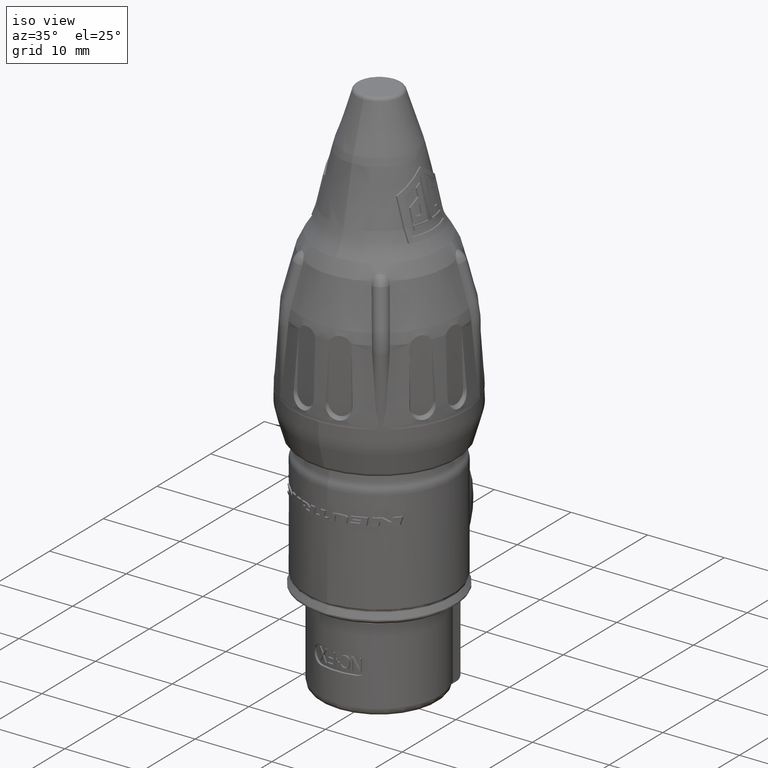
[diagram: clean part render]
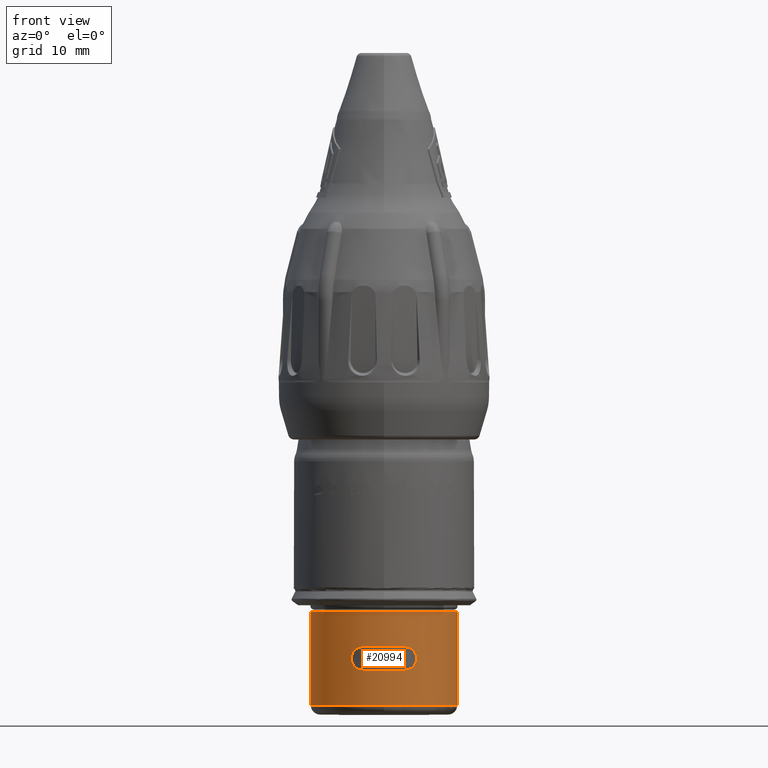
[diagram: tour spotlight — one face highlighted and labeled with its STEP entity id]
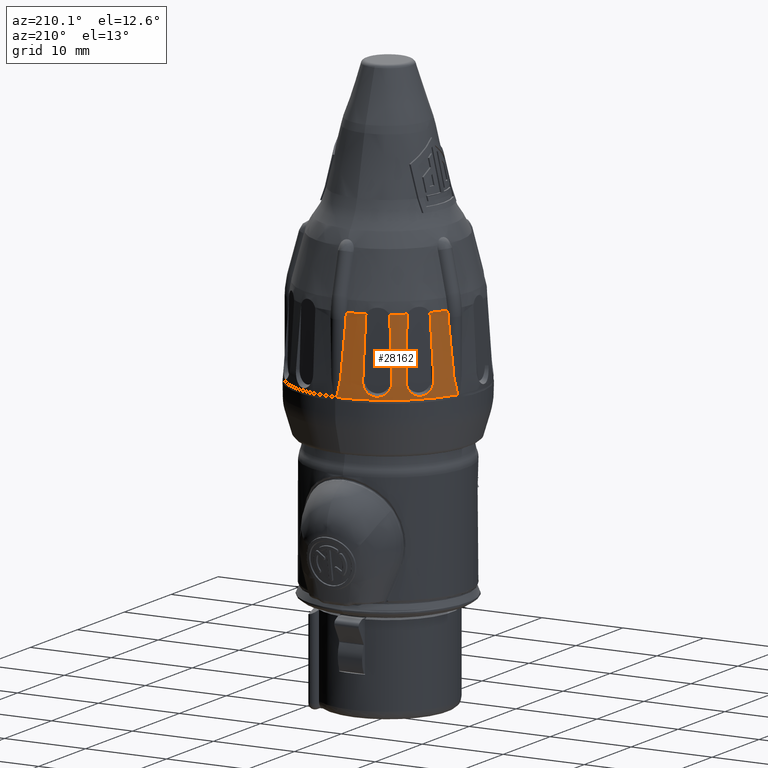
[diagram: tour spotlight — one face highlighted and labeled with its STEP entity id]
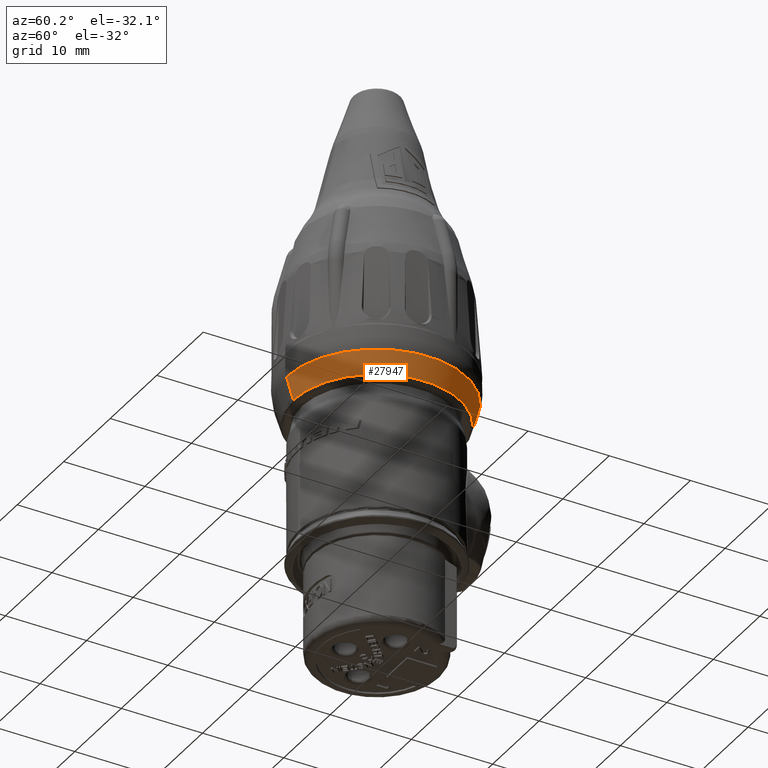
[diagram: tour spotlight — one face highlighted and labeled with its STEP entity id]
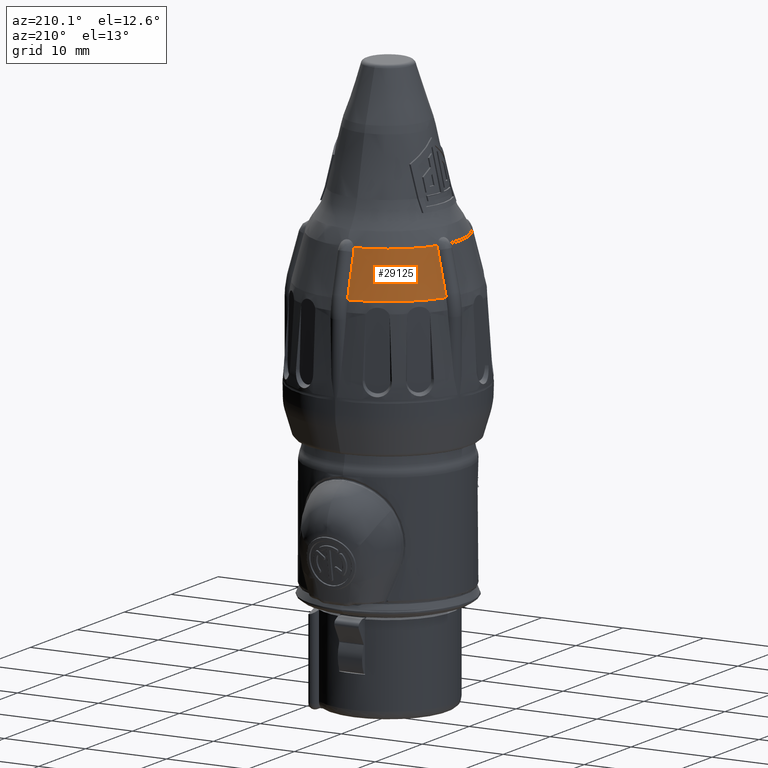
[diagram: tour spotlight — one face highlighted and labeled with its STEP entity id]
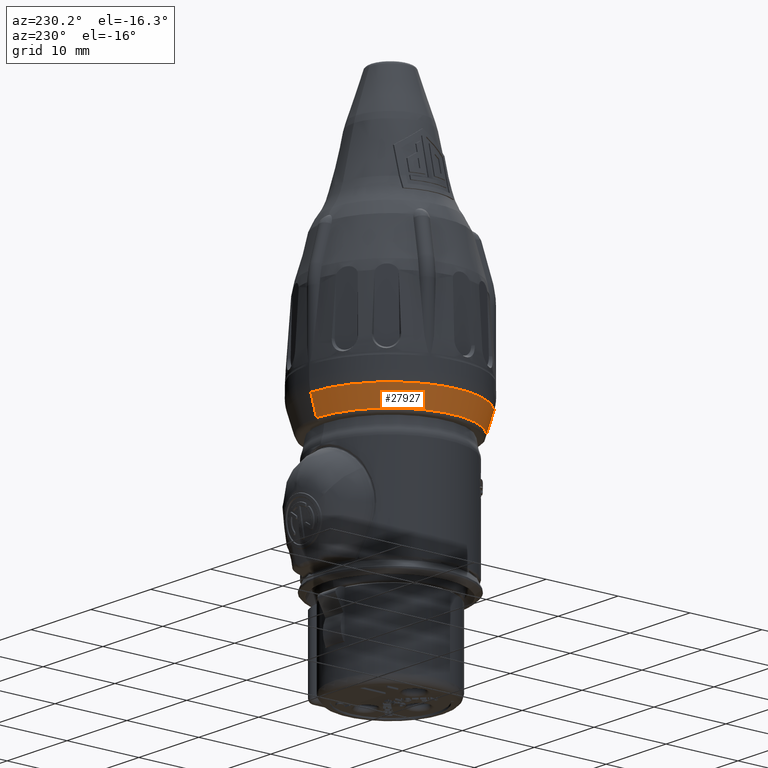
[diagram: tour spotlight — one face highlighted and labeled with its STEP entity id]
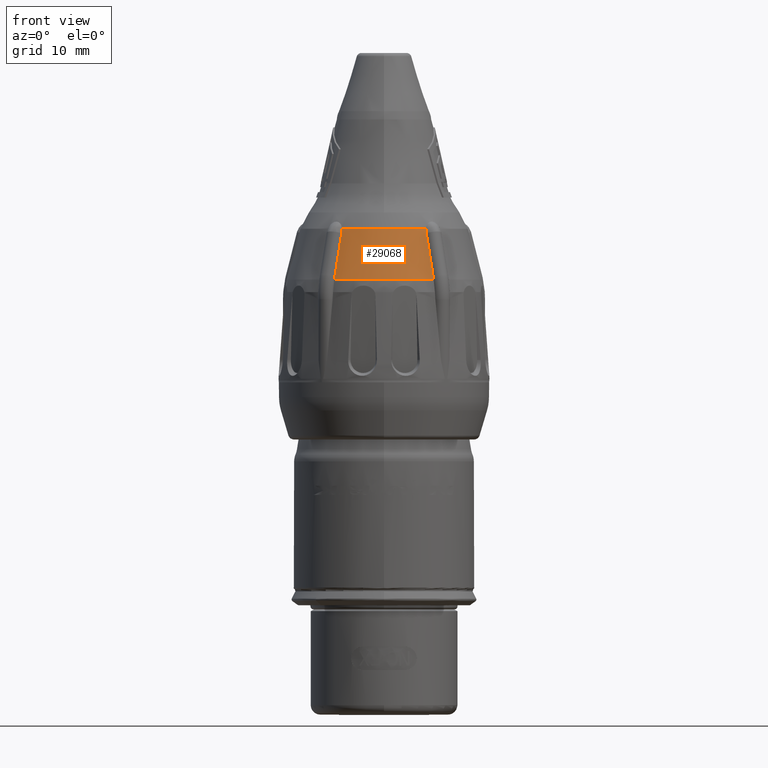
[diagram: tour spotlight — one face highlighted and labeled with its STEP entity id]
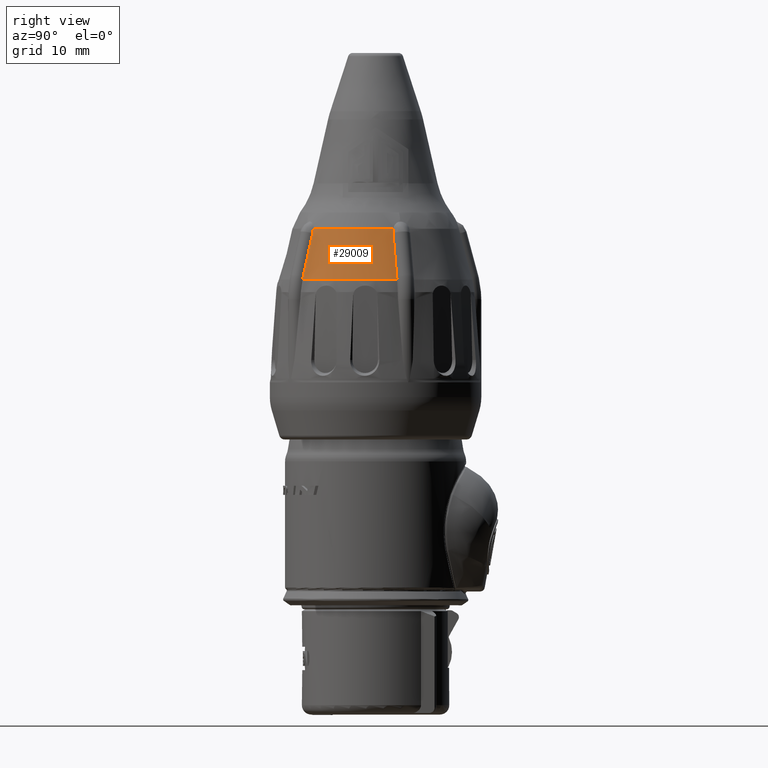
[diagram: tour spotlight — one face highlighted and labeled with its STEP entity id]
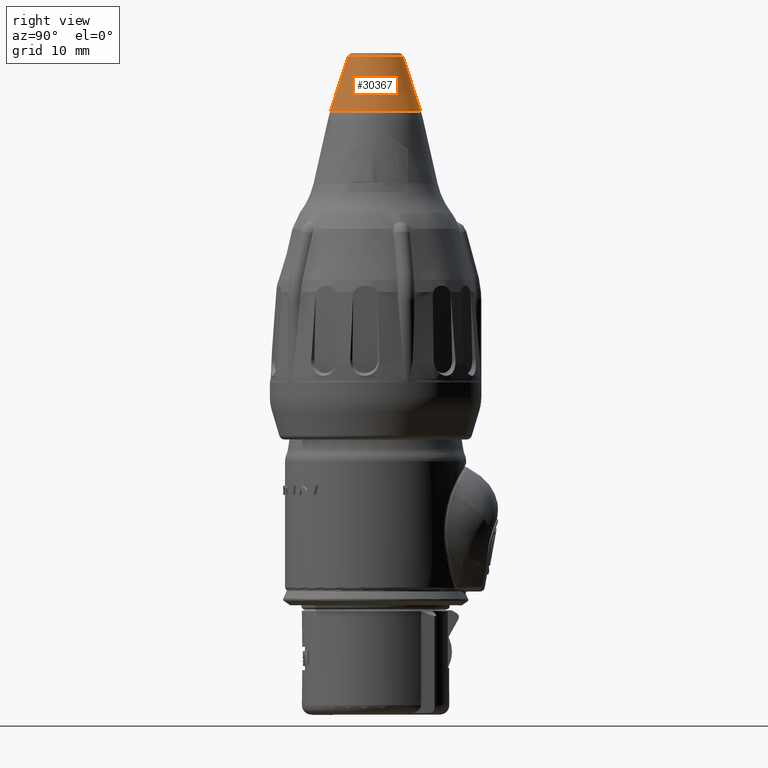
[diagram: tour spotlight — one face highlighted and labeled with its STEP entity id]
A machine part: a face-by-face anatomy tour. The part has 1145 B-rep faces; the first image is the clean iso view, then the 8 largest visible faces are spotlighted one at a time (largest first), each with its STEP entity span.

Face 1 — front view, entity #20994. In plain terms, the highlighted cylindrical surface (partial cylindrical patch) has radius 7.875 mm, axis along (0, 0, 1).
Definition (entity closure, byte-faithful):
#218=CARTESIAN_POINT('',(2.25E0,-7.546729424062E0,-6.85E0));
#219=CARTESIAN_POINT('',(2.368579292255E0,-7.511375909634E0,-6.85E0));
#220=CARTESIAN_POINT('',(2.594328459553E0,-7.438162107166E0,-6.882332954486E0));
#221=CARTESIAN_POINT('',(2.912914929128E0,-7.318719409727E0,-7.021742511960E0));
#222=CARTESIAN_POINT('',(3.170732248735E0,-7.209851206644E0,-7.234081597412E0));
#223=CARTESIAN_POINT('',(3.362059367683E0,-7.121898901173E0,-7.498965859915E0));
#224=CARTESIAN_POINT('',(3.474581553895E0,-7.067161186689E0,-7.793912920977E0));
#225=CARTESIAN_POINT('',(3.513154910400E0,-7.047911971453E0,-8.100985737652E0));
#226=CARTESIAN_POINT('',(3.474075362404E0,-7.067410731999E0,-8.407798166258E0));
#227=CARTESIAN_POINT('',(3.361574762981E0,-7.122128959973E0,-8.701935042772E0));
#228=CARTESIAN_POINT('',(3.170154424702E0,-7.210101428942E0,-8.966397674929E0));
#229=CARTESIAN_POINT('',(2.912914678769E0,-7.318713149267E0,-9.178239462225E0));
#230=CARTESIAN_POINT('',(2.594405040162E0,-7.438136078270E0,-9.317641237948E0));
#231=CARTESIAN_POINT('',(2.368633155905E0,-7.511359850597E0,-9.35E0));
#232=CARTESIAN_POINT('',(2.25E0,-7.546729424062E0,-9.35E0));
#234=CARTESIAN_POINT('',(-2.25E0,-7.546729424062E0,-9.35E0));
#235=CARTESIAN_POINT('',(-2.368579292255E0,-7.511375909634E0,-9.35E0));
#236=CARTESIAN_POINT('',(-2.594328459553E0,-7.438162107166E0,
-9.317667045514E0));
#237=CARTESIAN_POINT('',(-2.912914929128E0,-7.318719409727E0,
-9.178257488040E0));
#238=CARTESIAN_POINT('',(-3.170732248735E0,-7.209851206644E0,
-8.965918402588E0));
#239=CARTESIAN_POINT('',(-3.362059367683E0,-7.121898901173E0,
-8.701034140085E0));
#240=CARTESIAN_POINT('',(-3.474581553895E0,-7.067161186689E0,
-8.406087079023E0));
#241=CARTESIAN_POINT('',(-3.513154910400E0,-7.047911971453E0,
-8.099014262348E0));
#242=CARTESIAN_POINT('',(-3.474075362404E0,-7.067410731999E0,
-7.792201833742E0));
#243=CARTESIAN_POINT('',(-3.361574762981E0,-7.122128959973E0,
-7.498064957228E0));
#244=CARTESIAN_POINT('',(-3.170154424702E0,-7.210101428942E0,
-7.233602325071E0));
#245=CARTESIAN_POINT('',(-2.912914678769E0,-7.318713149267E0,
-7.021760537775E0));
#246=CARTESIAN_POINT('',(-2.594405040162E0,-7.438136078270E0,
-6.882358762052E0));
#247=CARTESIAN_POINT('',(-2.368633155905E0,-7.511359850597E0,-6.85E0));
#248=CARTESIAN_POINT('',(-2.25E0,-7.546729424062E0,-6.85E0));
#250=DIRECTION('',(0.E0,0.E0,1.E0));
#251=VECTOR('',#250,1.005048094716E1);
#252=CARTESIAN_POINT('',(5.047797160808E0,6.044449422680E0,-1.31E1));
#253=LINE('',#252,#251);
#254=CARTESIAN_POINT('',(0.E0,0.E0,-3.049519052838E0));
#255=DIRECTION('',(0.E0,0.E0,1.E0));
#256=DIRECTION('',(6.409901156581E-1,7.675491330388E-1,0.E0));
#257=AXIS2_PLACEMENT_3D('',#254,#255,#256);
#259=CARTESIAN_POINT('',(0.E0,0.E0,-9.1E0));
#260=DIRECTION('',(0.E0,0.E0,1.E0));
#261=DIRECTION('',(2.031746031746E-1,9.791425231420E-1,0.E0));
#262=AXIS2_PLACEMENT_3D('',#259,#260,#261);
#268=CARTESIAN_POINT('',(0.E0,0.E0,-9.35E0));
#269=DIRECTION('',(0.E0,0.E0,1.E0));
#270=DIRECTION('',(-2.857142857143E-1,-9.583148474999E-1,0.E0));
#271=AXIS2_PLACEMENT_3D('',#268,#269,#270);
#286=CARTESIAN_POINT('',(0.E0,0.E0,-6.85E0));
#287=DIRECTION('',(0.E0,0.E0,1.E0));
#288=DIRECTION('',(-2.857142857143E-1,-9.583148474999E-1,0.E0));
#289=AXIS2_PLACEMENT_3D('',#286,#287,#288);
#1567=CARTESIAN_POINT('',(0.E0,0.E0,-3.049519052838E0));
#1568=DIRECTION('',(0.E0,0.E0,-1.E0));
#1569=DIRECTION('',(7.873015873016E-1,6.165680908321E-1,0.E0));
#1570=AXIS2_PLACEMENT_3D('',#1567,#1568,#1569);
#10933=DIRECTION('',(0.E0,0.E0,1.E0));
#10934=VECTOR('',#10933,6.050480947162E0);
#10935=CARTESIAN_POINT('',(-1.6E0,7.710747369743E0,-9.1E0));
#10936=LINE('',#10935,#10934);
#10949=DIRECTION('',(0.E0,0.E0,1.E0));
#10950=VECTOR('',#10949,6.050480947162E0);
#10951=CARTESIAN_POINT('',(1.6E0,7.710747369743E0,-9.1E0));
#10952=LINE('',#10951,#10950);
#13390=CARTESIAN_POINT('',(5.047797160808E0,6.044449422680E0,-1.31E1));
#13392=CARTESIAN_POINT('',(0.E0,0.E0,-1.31E1));
#13393=DIRECTION('',(0.E0,0.E0,1.E0));
#13394=DIRECTION('',(6.409901156581E-1,7.675491330388E-1,0.E0));
#13395=AXIS2_PLACEMENT_3D('',#13392,#13393,#13394);
#13412=DIRECTION('',(0.E0,0.E0,1.E0));
#13413=VECTOR('',#13412,1.005048094716E1);
#13414=CARTESIAN_POINT('',(6.2E0,4.855473715303E0,-1.31E1));
#13415=LINE('',#13414,#13413);
#13450=CARTESIAN_POINT('',(0.E0,0.E0,-1.31E1));
#13451=DIRECTION('',(0.E0,0.E0,-1.E0));
#13452=DIRECTION('',(7.873015873016E-1,6.165680908321E-1,0.E0));
#13453=AXIS2_PLACEMENT_3D('',#13450,#13451,#13452);
#17943=CARTESIAN_POINT('',(0.E0,-7.875E0,-1.31E1));
#17945=VERTEX_POINT('',#17943);
#17955=VERTEX_POINT('',#218);
#17956=VERTEX_POINT('',#232);
#17959=CARTESIAN_POINT('',(-2.25E0,-7.546729424062E0,-6.85E0));
#17960=VERTEX_POINT('',#17959);
#17963=VERTEX_POINT('',#234);
#17966=VERTEX_POINT('',#13390);
#17967=CARTESIAN_POINT('',(1.6E0,7.710747369743E0,-9.1E0));
#17968=CARTESIAN_POINT('',(-1.6E0,7.710747369743E0,-9.1E0));
#17969=VERTEX_POINT('',#17967);
#17970=VERTEX_POINT('',#17968);
#17977=CARTESIAN_POINT('',(6.2E0,4.855473715303E0,-1.31E1));
#17978=VERTEX_POINT('',#17977);
#18252=CARTESIAN_POINT('',(1.6E0,7.710747369743E0,-3.049519052838E0));
#18253=VERTEX_POINT('',#18252);
#18254=CARTESIAN_POINT('',(-1.6E0,7.710747369743E0,-3.049519052838E0));
#18255=VERTEX_POINT('',#18254);
#18256=CARTESIAN_POINT('',(5.047797160808E0,6.044449422680E0,
-3.049519052838E0));
#18257=VERTEX_POINT('',#18256);
#18258=CARTESIAN_POINT('',(6.2E0,4.855473715303E0,-3.049519052838E0));
#18259=VERTEX_POINT('',#18258);
#20959=CARTESIAN_POINT('',(0.E0,0.E0,-1.625E1));
#20960=DIRECTION('',(0.E0,0.E0,1.E0));
#20961=DIRECTION('',(0.E0,-1.E0,0.E0));
#20962=AXIS2_PLACEMENT_3D('',#20959,#20960,#20961);
#20963=CYLINDRICAL_SURFACE('',#20962,7.875E0);
#20965=ORIENTED_EDGE('',*,*,#20964,.F.);
#20967=ORIENTED_EDGE('',*,*,#20966,.F.);
#20969=ORIENTED_EDGE('',*,*,#20968,.T.);
#20971=ORIENTED_EDGE('',*,*,#20970,.F.);
#20973=ORIENTED_EDGE('',*,*,#20972,.T.);
#20975=ORIENTED_EDGE('',*,*,#20974,.T.);
#20977=ORIENTED_EDGE('',*,*,#20976,.F.);
#20979=ORIENTED_EDGE('',*,*,#20978,.T.);
#20981=ORIENTED_EDGE('',*,*,#20980,.T.);
#20982=EDGE_LOOP('',(#20965,#20967,#20969,#20971,#20973,#20975,#20977,#20979,
#20981));
#20983=FACE_OUTER_BOUND('',#20982,.F.);
#20985=ORIENTED_EDGE('',*,*,#20984,.F.);
#20987=ORIENTED_EDGE('',*,*,#20986,.F.);
#20989=ORIENTED_EDGE('',*,*,#20988,.F.);
#20991=ORIENTED_EDGE('',*,*,#20990,.T.);
#20992=EDGE_LOOP('',(#20985,#20987,#20989,#20991));
#20993=FACE_BOUND('',#20992,.F.);
#233=B_SPLINE_CURVE_WITH_KNOTS('',3,(#218,#219,#220,#221,#222,#223,#224,#225,
#226,#227,#228,#229,#230,#231,#232),.UNSPECIFIED.,.F.,.F.,(4,1,1,1,1,1,1,1,1,1,
1,1,4),(0.E0,8.333333333333E-2,1.666666666667E-1,2.5E-1,3.333333333333E-1,
4.166666666667E-1,5.E-1,5.833333333333E-1,6.666666666667E-1,7.5E-1,
8.333333333333E-1,9.166666666667E-1,1.E0),.UNSPECIFIED.);
#249=B_SPLINE_CURVE_WITH_KNOTS('',3,(#234,#235,#236,#237,#238,#239,#240,#241,
#242,#243,#244,#245,#246,#247,#248),.UNSPECIFIED.,.F.,.F.,(4,1,1,1,1,1,1,1,1,1,
1,1,4),(0.E0,8.333333333333E-2,1.666666666667E-1,2.5E-1,3.333333333333E-1,
4.166666666667E-1,5.E-1,5.833333333333E-1,6.666666666667E-1,7.5E-1,
8.333333333333E-1,9.166666666667E-1,1.E0),.UNSPECIFIED.);
#258=CIRCLE('',#257,7.875E0);
#263=CIRCLE('',#262,7.875E0);
#272=CIRCLE('',#271,7.875E0);
#290=CIRCLE('',#289,7.875E0);
#1571=CIRCLE('',#1570,7.875E0);
#13396=CIRCLE('',#13395,7.875E0);
#13454=CIRCLE('',#13453,7.875E0);
#20964=EDGE_CURVE('',#18259,#18255,#1571,.T.);
#20966=EDGE_CURVE('',#17978,#18259,#13415,.T.);
#20968=EDGE_CURVE('',#17978,#17945,#13454,.T.);
#20970=EDGE_CURVE('',#17966,#17945,#13396,.T.);
#20972=EDGE_CURVE('',#17966,#18257,#253,.T.);
#20974=EDGE_CURVE('',#18257,#18253,#258,.T.);
#20976=EDGE_CURVE('',#17969,#18253,#10952,.T.);
#20978=EDGE_CURVE('',#17969,#17970,#263,.T.);
#20980=EDGE_CURVE('',#17970,#18255,#10936,.T.);
#20984=EDGE_CURVE('',#17955,#17956,#233,.T.);
#20986=EDGE_CURVE('',#17960,#17955,#290,.T.);
#20988=EDGE_CURVE('',#17963,#17960,#249,.T.);
#20990=EDGE_CURVE('',#17963,#17956,#272,.T.);
#20994=ADVANCED_FACE('',(#20983,#20993),#20963,.T.);

Face 2 — auxiliary view, entity #28162. In plain terms, the highlighted conical surface has half-angle 4.122 deg.
Definition (entity closure, byte-faithful):
#4111=CARTESIAN_POINT('',(0.E0,0.E0,2.177945276992E1));
#4112=DIRECTION('',(0.E0,0.E0,-1.E0));
#4113=DIRECTION('',(-9.463574077339E-1,3.231217368536E-1,0.E0));
#4114=AXIS2_PLACEMENT_3D('',#4111,#4112,#4113);
#4116=CARTESIAN_POINT('',(-1.677770611056E-1,1.128582150298E1,
2.177945276992E1));
#4117=CARTESIAN_POINT('',(-1.786850246398E-1,1.128396482847E1,
2.180296502657E1));
#4118=CARTESIAN_POINT('',(-2.001183374682E-1,1.127996364384E1,
2.185363825064E1));
#4119=CARTESIAN_POINT('',(-2.325374164738E-1,1.127275543658E1,
2.194499154136E1));
#4120=CARTESIAN_POINT('',(-2.612978335629E-1,1.126541285889E1,
2.203809909957E1));
#4121=CARTESIAN_POINT('',(-2.909011995199E-1,1.125691422752E1,
2.214593537375E1));
#4122=CARTESIAN_POINT('',(-3.190211865126E-1,1.124789963669E1,
2.226040065403E1));
#4123=CARTESIAN_POINT('',(-3.472380610432E-1,1.123794011417E1,
2.238696033144E1));
#4124=CARTESIAN_POINT('',(-3.754043463374E-1,1.122702072557E1,
2.252583734105E1));
#4125=CARTESIAN_POINT('',(-4.029560756683E-1,1.121539270879E1,
2.267386025690E1));
#4126=CARTESIAN_POINT('',(-4.315419374705E-1,1.120226892282E1,
2.284109579904E1));
#4127=CARTESIAN_POINT('',(-4.589653247857E-1,1.118864480304E1,
2.301489421191E1));
#4128=CARTESIAN_POINT('',(-4.880457094805E-1,1.117302063502E1,
2.321444796313E1));
#4129=CARTESIAN_POINT('',(-5.158510039670E-1,1.115689386106E1,
2.342068882502E1));
#4130=CARTESIAN_POINT('',(-5.452784120960E-1,1.113849672423E1,
2.365629821544E1));
#4131=CARTESIAN_POINT('',(-5.739620974928E-1,1.111913297928E1,
2.390467850764E1));
#4132=CARTESIAN_POINT('',(-6.034240366709E-1,1.109771697789E1,
2.417983854222E1));
#4133=CARTESIAN_POINT('',(-6.334482122818E-1,1.107409651944E1,
2.448390297339E1));
#4134=CARTESIAN_POINT('',(-6.625505027527E-1,1.104936200753E1,
2.480294724836E1));
#4135=CARTESIAN_POINT('',(-6.927909562559E-1,1.102155188226E1,
2.516244438863E1));
#4136=CARTESIAN_POINT('',(-7.230372440736E-1,1.099125567019E1,
2.555505608660E1));
#4137=CARTESIAN_POINT('',(-7.525307973941E-1,1.095906744599E1,
2.597328339499E1));
#4138=CARTESIAN_POINT('',(-7.823738887908E-1,1.092341744382E1,
2.643782289324E1));
#4139=CARTESIAN_POINT('',(-8.118387759038E-1,1.088459205991E1,
2.694536319630E1));
#4140=CARTESIAN_POINT('',(-8.407583050310E-1,1.084226247338E1,
2.750064777698E1));
#4141=CARTESIAN_POINT('',(-8.688261189444E-1,1.079614408954E1,
2.810796768893E1));
#4142=CARTESIAN_POINT('',(-8.955793442379E-1,1.074617081536E1,
2.876882496342E1));
#4143=CARTESIAN_POINT('',(-9.208190550220E-1,1.069162814007E1,
2.949343806158E1));
#4144=CARTESIAN_POINT('',(-9.362825947980E-1,1.065192830806E1,
3.002355632893E1));
#4145=CARTESIAN_POINT('',(-9.435303540900E-1,1.063128608620E1,3.03E1));
#4147=CARTESIAN_POINT('',(-9.435303540900E-1,1.063128608620E1,3.03E1));
#4148=CARTESIAN_POINT('',(-9.456608596776E-1,1.062521822892E1,
3.038126163717E1));
#4149=CARTESIAN_POINT('',(-9.490405770828E-1,1.061310649113E1,
3.054450810445E1));
#4150=CARTESIAN_POINT('',(-9.517546355757E-1,1.059499044288E1,
3.079153846445E1));
#4151=CARTESIAN_POINT('',(-9.520854794570E-1,1.058294126217E1,
3.095766294078E1));
#4152=CARTESIAN_POINT('',(-9.518777910151E-1,1.057692423373E1,
3.104108480385E1));
#4154=CARTESIAN_POINT('',(0.E0,0.E0,3.104108480385E1));
#4155=DIRECTION('',(0.E0,0.E0,1.E0));
#4156=DIRECTION('',(-8.963345969154E-2,9.959748204165E-1,0.E0));
#4157=AXIS2_PLACEMENT_3D('',#4154,#4155,#4156);
#4159=CARTESIAN_POINT('',(-3.167684803999E0,1.013623058921E1,3.104108480385E1));
#4160=CARTESIAN_POINT('',(-3.158660091892E0,1.014077108439E1,3.101830028487E1));
#4161=CARTESIAN_POINT('',(-3.140675989344E0,1.014983203602E1,3.097233680253E1));
#4162=CARTESIAN_POINT('',(-3.122814734625E0,1.015885629287E1,3.092558827414E1));
#4163=CARTESIAN_POINT('',(-3.113913004771E0,1.016336003677E1,3.090201856340E1));
#4165=CARTESIAN_POINT('',(-3.056022657038E0,1.071414990349E1,2.38E1));
#4166=CARTESIAN_POINT('',(-3.062514605448E0,1.065238314030E1,2.459956494379E1));
#4167=CARTESIAN_POINT('',(-3.075458237065E0,1.052923271173E1,2.619172727485E1));
#4168=CARTESIAN_POINT('',(-3.094754242149E0,1.034564348685E1,2.855906208860E1));
#4169=CARTESIAN_POINT('',(-3.107539677580E0,1.022399819446E1,3.012335540323E1));
#4170=CARTESIAN_POINT('',(-3.113913004771E0,1.016336003677E1,3.090201856340E1));
#4172=CARTESIAN_POINT('',(-3.056022657038E0,1.071414990349E1,2.38E1));
#4173=CARTESIAN_POINT('',(-3.054699363337E0,1.072674020204E1,2.363701976868E1));
#4174=CARTESIAN_POINT('',(-3.097181963821E0,1.073715452925E1,2.333766819688E1));
#4175=CARTESIAN_POINT('',(-3.239935956953E0,1.072267377164E1,2.297318847084E1));
#4176=CARTESIAN_POINT('',(-3.429664812699E0,1.068585945693E1,2.268141459270E1));
#4177=CARTESIAN_POINT('',(-3.656512828973E0,1.062847830138E1,2.244712517223E1));
#4178=CARTESIAN_POINT('',(-3.912544452431E0,1.055106588899E1,2.226784722961E1));
#4179=CARTESIAN_POINT('',(-4.207450571344E0,1.044703705615E1,2.214235094298E1));
#4180=CARTESIAN_POINT('',(-4.513565036466E0,1.032288822669E1,2.208850109284E1));
#4181=CARTESIAN_POINT('',(-4.822749787341E0,1.018019452488E1,2.211069102015E1));
#4182=CARTESIAN_POINT('',(-5.092676778958E0,1.004023392521E1,2.220006512487E1));
#4183=CARTESIAN_POINT('',(-5.334958624482E0,9.901759233211E0,2.234456043703E1));
#4184=CARTESIAN_POINT('',(-5.573618293632E0,9.750225761263E0,2.257505121533E1));
#4185=CARTESIAN_POINT('',(-5.777638808248E0,9.602424576662E0,2.290589327936E1));
#4186=CARTESIAN_POINT('',(-5.907774224978E0,9.486693549140E0,2.332558510551E1));
#4187=CARTESIAN_POINT('',(-5.927635082858E0,9.447751537503E0,2.363532590022E1));
#4188=CARTESIAN_POINT('',(-5.917286766615E0,9.440233045659E0,2.38E1));
#4190=CARTESIAN_POINT('',(-5.469233923756E0,9.114703600528E0,3.090201856340E1));
#4191=CARTESIAN_POINT('',(-5.518556317145E0,9.150538416908E0,3.012343635185E1));
#4192=CARTESIAN_POINT('',(-5.617504703392E0,9.222428627594E0,2.855925098789E1));
#4193=CARTESIAN_POINT('',(-5.766849586014E0,9.330934036159E0,2.619191757928E1));
#4194=CARTESIAN_POINT('',(-5.867036029014E0,9.403723747728E0,2.459964651092E1));
#4195=CARTESIAN_POINT('',(-5.917286766615E0,9.440233045659E0,2.38E1));
#4197=CARTESIAN_POINT('',(-5.469233923756E0,9.114703600528E0,3.090201856340E1));
#4198=CARTESIAN_POINT('',(-5.459931026145E0,9.118305105491E0,3.092558711824E1));
#4199=CARTESIAN_POINT('',(-5.441273657666E0,9.125540013552E0,3.097233449864E1));
#4200=CARTESIAN_POINT('',(-5.422505889186E0,9.132842022627E0,3.101829913743E1));
#4201=CARTESIAN_POINT('',(-5.413092458564E0,9.136510691187E0,3.104108480385E1));
#4203=CARTESIAN_POINT('',(0.E0,0.E0,3.104108480385E1));
#4204=DIRECTION('',(0.E0,0.E0,1.E0));
#4205=DIRECTION('',(-5.097232116046E-1,8.603384494206E-1,0.E0));
#4206=AXIS2_PLACEMENT_3D('',#4203,#4204,#4205);
#4208=CARTESIAN_POINT('',(-6.978512024729E0,8.018148873584E0,3.090201856340E1));
#4209=CARTESIAN_POINT('',(-6.984812321929E0,8.010413839089E0,3.092558827414E1));
#4210=CARTESIAN_POINT('',(-6.997458894105E0,7.994904943443E0,3.097233680253E1));
#4211=CARTESIAN_POINT('',(-7.010202768248E0,7.979312558742E0,3.101830028487E1));
#4212=CARTESIAN_POINT('',(-7.016600467235E0,7.971493928891E0,3.104108480385E1));
#4214=CARTESIAN_POINT('',(-7.149652981945E0,8.544866580145E0,2.38E1));
#4215=CARTESIAN_POINT('',(-7.130460866013E0,8.485799320898E0,2.459956494379E1));
#4216=CARTESIAN_POINT('',(-7.092195669973E0,8.368031156999E0,2.619172727485E1));
#4217=CARTESIAN_POINT('',(-7.035150982736E0,8.192465662208E0,2.855906208860E1));
#4218=CARTESIAN_POINT('',(-6.997353461323E0,8.076136852808E0,3.012335540323E1));
#4219=CARTESIAN_POINT('',(-6.978512024729E0,8.018148873584E0,3.090201856340E1));
#4221=CARTESIAN_POINT('',(-9.245399146054E0,6.217304662379E0,2.38E1));
#4222=CARTESIAN_POINT('',(-9.257860263007E0,6.219953354554E0,2.363599169947E1));
#4223=CARTESIAN_POINT('',(-9.256404006326E0,6.263077677364E0,2.332067460122E1));
#4224=CARTESIAN_POINT('',(-9.176229517922E0,6.438572003161E0,2.286548384594E1));
#4225=CARTESIAN_POINT('',(-9.017441242339E0,6.706158481381E0,2.248976636813E1));
#4226=CARTESIAN_POINT('',(-8.797870295702E0,7.022530507123E0,2.223164478787E1));
#4227=CARTESIAN_POINT('',(-8.532267452532E0,7.358946973017E0,2.209538732792E1));
#4228=CARTESIAN_POINT('',(-8.218153271738E0,7.708654986374E0,2.209259879446E1));
#4229=CARTESIAN_POINT('',(-7.902502739195E0,8.016851527015E0,2.223192922253E1));
#4230=CARTESIAN_POINT('',(-7.613012149631E0,8.266172151203E0,2.248884003374E1));
#4231=CARTESIAN_POINT('',(-7.362192420435E0,8.453179860813E0,2.286589245194E1));
#4232=CARTESIAN_POINT('',(-7.196744024548E0,8.550785399565E0,2.331939252022E1));
#4233=CARTESIAN_POINT('',(-7.153602199987E0,8.557021023497E0,2.363547117405E1));
#4234=CARTESIAN_POINT('',(-7.149652981945E0,8.544866580145E0,2.38E1));
#4236=CARTESIAN_POINT('',(-8.703677752942E0,6.102158225676E0,3.090201856340E1));
#4237=CARTESIAN_POINT('',(-8.763311334302E0,6.114833734690E0,3.012343635185E1));
#4238=CARTESIAN_POINT('',(-8.882945566063E0,6.140262775652E0,2.855925098789E1));
#4239=CARTESIAN_POINT('',(-9.063512030840E0,6.178643362558E0,2.619191757928E1));
#4240=CARTESIAN_POINT('',(-9.184643143695E0,6.204390575417E0,2.459964651092E1));
#4241=CARTESIAN_POINT('',(-9.245399146054E0,6.217304662379E0,2.38E1));
#4243=CARTESIAN_POINT('',(-8.661259715281E0,6.144914785382E0,3.104108480385E1));
#4244=CARTESIAN_POINT('',(-8.668367130131E0,6.137734502712E0,3.101829913743E1));
#4245=CARTESIAN_POINT('',(-8.682542345118E0,6.123430246340E0,3.097233449864E1));
#4246=CARTESIAN_POINT('',(-8.696643997125E0,6.109232193521E0,3.092558711824E1));
#4247=CARTESIAN_POINT('',(-8.703677752942E0,6.102158225676E0,3.090201856340E1));
#4249=CARTESIAN_POINT('',(0.E0,0.E0,3.104108480385E1));
#4250=DIRECTION('',(0.E0,0.E0,1.E0));
#4251=DIRECTION('',(-8.155864974428E-1,5.786351745176E-1,0.E0));
#4252=AXIS2_PLACEMENT_3D('',#4249,#4250,#4251);
#4254=CARTESIAN_POINT('',(-9.765106300860E0,4.173738912301E0,3.104108480385E1));
#4255=CARTESIAN_POINT('',(-9.770764655706E0,4.175795799790E0,3.095766294078E1));
#4256=CARTESIAN_POINT('',(-9.782326343919E0,4.179204550169E0,3.079153846445E1));
#4257=CARTESIAN_POINT('',(-9.800394419852E0,4.182221493933E0,3.054450810445E1));
#4258=CARTESIAN_POINT('',(-9.812957757114E0,4.182749924479E0,3.038126163717E1));
#4259=CARTESIAN_POINT('',(-9.819386994758E0,4.182598764278E0,3.03E1));
#4261=CARTESIAN_POINT('',(-9.819386994758E0,4.182598764278E0,3.03E1));
#4262=CARTESIAN_POINT('',(-9.840641160593E0,4.182099049666E0,3.003136032479E1));
#4263=CARTESIAN_POINT('',(-9.882003048983E0,4.179765396156E0,2.951566852233E1));
#4264=CARTESIAN_POINT('',(-9.939984801059E0,4.172980594989E0,2.881076227856E1));
#4265=CARTESIAN_POINT('',(-9.994587031977E0,4.163430069633E0,2.816284530258E1));
#4266=CARTESIAN_POINT('',(-1.004583506379E1,4.151584624028E0,2.756896621238E1));
#4267=CARTESIAN_POINT('',(-1.009390363717E1,4.137849434387E0,2.702466740031E1));
#4268=CARTESIAN_POINT('',(-1.013896131507E1,4.122561959610E0,2.652596589307E1));
#4269=CARTESIAN_POINT('',(-1.018094575133E1,4.106113406752E0,2.607161118561E1));
#4270=CARTESIAN_POINT('',(-1.022035488631E1,4.088648622845E0,2.565447073487E1));
#4271=CARTESIAN_POINT('',(-1.025790209253E1,4.070059066988E0,2.526589962741E1));
#4272=CARTESIAN_POINT('',(-1.029269241842E1,4.051017778608E0,2.491399489399E1));
#4273=CARTESIAN_POINT('',(-1.032519294747E1,4.031585180865E0,2.459251910138E1));
#4274=CARTESIAN_POINT('',(-1.035661007134E1,4.011135406461E0,2.428902417545E1));
#4275=CARTESIAN_POINT('',(-1.038492576250E1,3.991222935534E0,2.402187951071E1));
#4276=CARTESIAN_POINT('',(-1.041277027022E1,3.970173856054E0,2.376544234522E1));
#4277=CARTESIAN_POINT('',(-1.043846823310E1,3.949318535028E0,2.353481084399E1));
#4278=CARTESIAN_POINT('',(-1.046290621524E1,3.928139478193E0,2.332112111877E1));
#4279=CARTESIAN_POINT('',(-1.048599100095E1,3.906801794592E0,2.312479001278E1));
#4280=CARTESIAN_POINT('',(-1.050783944405E1,3.885315533892E0,2.294429206453E1));
#4281=CARTESIAN_POINT('',(-1.052857350835E1,3.863652243709E0,2.277820666355E1));
#4282=CARTESIAN_POINT('',(-1.054832262584E1,3.841752107327E0,2.262515584114E1));
#4283=CARTESIAN_POINT('',(-1.056711864906E1,3.819639414804E0,2.248462076026E1));
#4284=CARTESIAN_POINT('',(-1.058505024453E1,3.797279614345E0,2.235563067603E1));
#4285=CARTESIAN_POINT('',(-1.060245658033E1,3.774230567297E0,2.223579714029E1));
#4286=CARTESIAN_POINT('',(-1.061873673342E1,3.751379504287E0,2.212887075988E1));
#4287=CARTESIAN_POINT('',(-1.063540474582E1,3.726451677245E0,2.202547926736E1));
#4288=CARTESIAN_POINT('',(-1.065031435832E1,3.702727791619E0,2.193863804910E1));
#4289=CARTESIAN_POINT('',(-1.066675034869E1,3.674752912024E0,2.185009349865E1));
#4290=CARTESIAN_POINT('',(-1.067671027828E1,3.656423875786E0,2.180185949361E1));
#4291=CARTESIAN_POINT('',(-1.068160530918E1,3.647084336659E0,2.177945276992E1));
#20187=VERTEX_POINT('',#4172);
#20188=VERTEX_POINT('',#4188);
#20191=VERTEX_POINT('',#4190);
#20192=CARTESIAN_POINT('',(-3.113913004771E0,1.016336003677E1,
3.090201856340E1));
#20193=VERTEX_POINT('',#20192);
#20195=CARTESIAN_POINT('',(-9.435303540900E-1,1.063128608620E1,3.03E1));
#20197=VERTEX_POINT('',#20195);
#20202=VERTEX_POINT('',#4152);
#20208=CARTESIAN_POINT('',(-9.819386994758E0,4.182598764278E0,3.03E1));
#20210=VERTEX_POINT('',#20208);
#20257=VERTEX_POINT('',#4254);
#20266=CARTESIAN_POINT('',(-1.068160092081E1,3.647097189393E0,
2.177945276992E1));
#20267=CARTESIAN_POINT('',(-1.677993358739E-1,1.128582117186E1,
2.177945276992E1));
#20268=VERTEX_POINT('',#20266);
#20269=VERTEX_POINT('',#20267);
#20281=VERTEX_POINT('',#4221);
#20282=VERTEX_POINT('',#4234);
#20285=CARTESIAN_POINT('',(-6.978512024729E0,8.018148873584E0,
3.090201856340E1));
#20286=VERTEX_POINT('',#20285);
#20287=CARTESIAN_POINT('',(-8.703677752942E0,6.102158225676E0,
3.090201856340E1));
#20288=VERTEX_POINT('',#20287);
#20353=VERTEX_POINT('',#4201);
#20354=VERTEX_POINT('',#4159);
#20355=VERTEX_POINT('',#4212);
#20356=VERTEX_POINT('',#4243);
#28120=CARTESIAN_POINT('',(0.E0,0.E0,2.641026878689E1));
#28121=DIRECTION('',(0.E0,0.E0,-1.E0));
#28122=DIRECTION('',(0.E0,1.E0,0.E0));
#28123=AXIS2_PLACEMENT_3D('',#28120,#28121,#28122);
#28124=CONICAL_SURFACE('',#28123,1.095336942502E1,4.121640589126E0);
#28125=ORIENTED_EDGE('',*,*,#28052,.T.);
#28127=ORIENTED_EDGE('',*,*,#28126,.T.);
#28129=ORIENTED_EDGE('',*,*,#28128,.T.);
#28131=ORIENTED_EDGE('',*,*,#28130,.T.);
#28133=ORIENTED_EDGE('',*,*,#28132,.T.);
#28135=ORIENTED_EDGE('',*,*,#28134,.F.);
#28137=ORIENTED_EDGE('',*,*,#28136,.T.);
#28139=ORIENTED_EDGE('',*,*,#28138,.F.);
#28141=ORIENTED_EDGE('',*,*,#28140,.T.);
#28143=ORIENTED_EDGE('',*,*,#28142,.T.);
#28145=ORIENTED_EDGE('',*,*,#28144,.F.);
#28147=ORIENTED_EDGE('',*,*,#28146,.F.);
#28149=ORIENTED_EDGE('',*,*,#28148,.F.);
#28151=ORIENTED_EDGE('',*,*,#28150,.F.);
#28153=ORIENTED_EDGE('',*,*,#28152,.F.);
#28155=ORIENTED_EDGE('',*,*,#28154,.T.);
#28157=ORIENTED_EDGE('',*,*,#28156,.T.);
#28159=ORIENTED_EDGE('',*,*,#28158,.T.);
#28160=EDGE_LOOP('',(#28125,#28127,#28129,#28131,#28133,#28135,#28137,#28139,
#28141,#28143,#28145,#28147,#28149,#28151,#28153,#28155,#28157,#28159));
#28161=FACE_OUTER_BOUND('',#28160,.F.);
#4115=CIRCLE('',#4114,1.128706853617E1);
#4146=B_SPLINE_CURVE_WITH_KNOTS('',3,(#4116,#4117,#4118,#4119,#4120,#4121,#4122,
#4123,#4124,#4125,#4126,#4127,#4128,#4129,#4130,#4131,#4132,#4133,#4134,#4135,
#4136,#4137,#4138,#4139,#4140,#4141,#4142,#4143,#4144,#4145),.UNSPECIFIED.,.F.,
.F.,(4,1,1,1,1,1,1,1,1,1,1,1,1,1,1,1,1,1,1,1,1,1,1,1,1,1,1,4),(0.E0,
3.703703703704E-2,7.407407407407E-2,1.111111111111E-1,1.481481481481E-1,
1.851851851852E-1,2.222222222222E-1,2.592592592593E-1,2.962962962963E-1,
3.333333333333E-1,3.703703703704E-1,4.074074074074E-1,4.444444444444E-1,
4.814814814815E-1,5.185185185185E-1,5.555555555556E-1,5.925925925926E-1,
6.296296296296E-1,6.666666666667E-1,7.037037037037E-1,7.407407407407E-1,
7.777777777778E-1,8.148148148148E-1,8.518518518519E-1,8.888888888889E-1,
9.259259259259E-1,9.629629629630E-1,1.E0),.UNSPECIFIED.);
#4153=B_SPLINE_CURVE_WITH_KNOTS('',3,(#4147,#4148,#4149,#4150,#4151,#4152),
.UNSPECIFIED.,.F.,.F.,(4,1,1,4),(0.E0,3.333333333333E-1,6.666666666667E-1,1.E0),
.UNSPECIFIED.);
#4158=CIRCLE('',#4157,1.061967031386E1);
#4164=B_SPLINE_CURVE_WITH_KNOTS('',3,(#4159,#4160,#4161,#4162,#4163),
.UNSPECIFIED.,.F.,.F.,(4,1,4),(0.E0,5.E-1,1.E0),.UNSPECIFIED.);
#4171=B_SPLINE_CURVE_WITH_KNOTS('',3,(#4165,#4166,#4167,#4168,#4169,#4170),
.UNSPECIFIED.,.F.,.F.,(4,1,1,4),(0.E0,3.333333333333E-1,6.666666666667E-1,1.E0),
.UNSPECIFIED.);
#4189=B_SPLINE_CURVE_WITH_KNOTS('',3,(#4172,#4173,#4174,#4175,#4176,#4177,#4178,
#4179,#4180,#4181,#4182,#4183,#4184,#4185,#4186,#4187,#4188),.UNSPECIFIED.,.F.,
.F.,(4,1,1,1,1,1,1,1,1,1,1,1,1,1,4),(0.E0,7.142857142857E-2,1.428571428571E-1,
2.142857142857E-1,2.857142857143E-1,3.571428571429E-1,4.285714285714E-1,5.E-1,
5.714285714286E-1,6.428571428571E-1,7.142857142857E-1,7.857142857143E-1,
8.571428571429E-1,9.285714285714E-1,1.E0),.UNSPECIFIED.);
#4196=B_SPLINE_CURVE_WITH_KNOTS('',3,(#4190,#4191,#4192,#4193,#4194,#4195),
.UNSPECIFIED.,.F.,.F.,(4,1,1,4),(0.E0,3.333333333333E-1,6.666666666667E-1,1.E0),
.UNSPECIFIED.);
#4202=B_SPLINE_CURVE_WITH_KNOTS('',3,(#4197,#4198,#4199,#4200,#4201),
.UNSPECIFIED.,.F.,.F.,(4,1,4),(0.E0,5.E-1,1.E0),.UNSPECIFIED.);
#4207=CIRCLE('',#4206,1.061967031386E1);
#4213=B_SPLINE_CURVE_WITH_KNOTS('',3,(#4208,#4209,#4210,#4211,#4212),
.UNSPECIFIED.,.F.,.F.,(4,1,4),(0.E0,5.E-1,1.E0),.UNSPECIFIED.);
#4220=B_SPLINE_CURVE_WITH_KNOTS('',3,(#4214,#4215,#4216,#4217,#4218,#4219),
.UNSPECIFIED.,.F.,.F.,(4,1,1,4),(0.E0,3.333333333333E-1,6.666666666667E-1,1.E0),
.UNSPECIFIED.);
#4235=B_SPLINE_CURVE_WITH_KNOTS('',3,(#4221,#4222,#4223,#4224,#4225,#4226,#4227,
#4228,#4229,#4230,#4231,#4232,#4233,#4234),.UNSPECIFIED.,.F.,.F.,(4,1,1,1,1,1,1,
1,1,1,1,4),(0.E0,9.090909090909E-2,1.818181818182E-1,2.727272727273E-1,
3.636363636364E-1,4.545454545455E-1,5.454545454545E-1,6.363636363636E-1,
7.272727272727E-1,8.181818181818E-1,9.090909090909E-1,1.E0),.UNSPECIFIED.);
#4242=B_SPLINE_CURVE_WITH_KNOTS('',3,(#4236,#4237,#4238,#4239,#4240,#4241),
.UNSPECIFIED.,.F.,.F.,(4,1,1,4),(0.E0,3.333333333333E-1,6.666666666667E-1,1.E0),
.UNSPECIFIED.);
#4248=B_SPLINE_CURVE_WITH_KNOTS('',3,(#4243,#4244,#4245,#4246,#4247),
.UNSPECIFIED.,.F.,.F.,(4,1,4),(0.E0,5.E-1,1.E0),.UNSPECIFIED.);
#4253=CIRCLE('',#4252,1.061967031386E1);
#4260=B_SPLINE_CURVE_WITH_KNOTS('',3,(#4254,#4255,#4256,#4257,#4258,#4259),
.UNSPECIFIED.,.F.,.F.,(4,1,1,4),(0.E0,3.333333333333E-1,6.666666666667E-1,1.E0),
.UNSPECIFIED.);
#4292=B_SPLINE_CURVE_WITH_KNOTS('',3,(#4261,#4262,#4263,#4264,#4265,#4266,#4267,
#4268,#4269,#4270,#4271,#4272,#4273,#4274,#4275,#4276,#4277,#4278,#4279,#4280,
#4281,#4282,#4283,#4284,#4285,#4286,#4287,#4288,#4289,#4290,#4291),
.UNSPECIFIED.,.F.,.F.,(4,1,1,1,1,1,1,1,1,1,1,1,1,1,1,1,1,1,1,1,1,1,1,1,1,1,1,1,
4),(0.E0,3.571428571429E-2,7.142857142857E-2,1.071428571429E-1,
1.428571428571E-1,1.785714285714E-1,2.142857142857E-1,2.5E-1,2.857142857143E-1,
3.214285714286E-1,3.571428571429E-1,3.928571428571E-1,4.285714285714E-1,
4.642857142857E-1,5.E-1,5.357142857143E-1,5.714285714286E-1,6.071428571429E-1,
6.428571428571E-1,6.785714285714E-1,7.142857142857E-1,7.5E-1,7.857142857143E-1,
8.214285714286E-1,8.571428571429E-1,8.928571428571E-1,9.285714285714E-1,
9.642857142857E-1,1.E0),.UNSPECIFIED.);
#28052=EDGE_CURVE('',#20268,#20269,#4115,.T.);
#28126=EDGE_CURVE('',#20269,#20197,#4146,.T.);
#28128=EDGE_CURVE('',#20197,#20202,#4153,.T.);
#28130=EDGE_CURVE('',#20202,#20354,#4158,.T.);
#28132=EDGE_CURVE('',#20354,#20193,#4164,.T.);
#28134=EDGE_CURVE('',#20187,#20193,#4171,.T.);
#28136=EDGE_CURVE('',#20187,#20188,#4189,.T.);
#28138=EDGE_CURVE('',#20191,#20188,#4196,.T.);
#28140=EDGE_CURVE('',#20191,#20353,#4202,.T.);
#28142=EDGE_CURVE('',#20353,#20355,#4207,.T.);
#28144=EDGE_CURVE('',#20286,#20355,#4213,.T.);
#28146=EDGE_CURVE('',#20282,#20286,#4220,.T.);
#28148=EDGE_CURVE('',#20281,#20282,#4235,.T.);
#28150=EDGE_CURVE('',#20288,#20281,#4242,.T.);
#28152=EDGE_CURVE('',#20356,#20288,#4248,.T.);
#28154=EDGE_CURVE('',#20356,#20257,#4253,.T.);
#28156=EDGE_CURVE('',#20257,#20210,#4260,.T.);
#28158=EDGE_CURVE('',#20210,#20268,#4292,.T.);
#28162=ADVANCED_FACE('',(#28161),#28124,.T.);

Face 3 — auxiliary view, entity #27947. In plain terms, the highlighted conical surface has half-angle 16.677 deg.
Definition (entity closure, byte-faithful):
#3817=CARTESIAN_POINT('',(0.E0,0.E0,1.572781306623E1));
#3818=DIRECTION('',(0.E0,0.E0,-1.E0));
#3819=DIRECTION('',(0.E0,1.E0,0.E0));
#3820=AXIS2_PLACEMENT_3D('',#3817,#3818,#3819);
#3832=DIRECTION('',(-1.838838794225E-11,-2.869782229457E-1,-9.579371062627E-1));
#3833=VECTOR('',#3832,2.787400588604E0);
#3834=CARTESIAN_POINT('',(5.125454325127E-11,1.108968553131E1,
1.839796752007E1));
#3835=LINE('',#3834,#3833);
#3836=DIRECTION('',(1.838824373128E-11,2.869782229457E-1,-9.579371062627E-1));
#3837=VECTOR('',#3836,2.787400588604E0);
#3838=CARTESIAN_POINT('',(-5.125414125752E-11,-1.108968553131E1,
1.839796752007E1));
#3839=LINE('',#3838,#3837);
#3840=CARTESIAN_POINT('',(0.E0,0.E0,1.839796752008E1));
#3841=DIRECTION('',(0.E0,0.E0,1.E0));
#3842=DIRECTION('',(0.E0,-1.E0,0.E0));
#3843=AXIS2_PLACEMENT_3D('',#3840,#3841,#3842);
#20151=CARTESIAN_POINT('',(0.E0,1.028976226376E1,1.572781306623E1));
#20153=VERTEX_POINT('',#20151);
#20155=CARTESIAN_POINT('',(0.E0,-1.028976226376E1,1.572781306623E1));
#20157=VERTEX_POINT('',#20155);
#20167=CARTESIAN_POINT('',(5.125454325127E-11,1.108968553131E1,
1.839796752007E1));
#20168=VERTEX_POINT('',#20167);
#20169=CARTESIAN_POINT('',(-5.125414125752E-11,-1.108968553131E1,
1.839796752007E1));
#20170=VERTEX_POINT('',#20169);
#27935=CARTESIAN_POINT('',(0.E0,0.E0,1.706289029315E1));
#27936=DIRECTION('',(0.E0,0.E0,1.E0));
#27937=DIRECTION('',(0.E0,-1.E0,0.E0));
#27938=AXIS2_PLACEMENT_3D('',#27935,#27936,#27937);
#27939=CONICAL_SURFACE('',#27938,1.068972389754E1,1.667713283147E1);
#27940=ORIENTED_EDGE('',*,*,#27918,.T.);
#27941=ORIENTED_EDGE('',*,*,#27881,.T.);
#27942=ORIENTED_EDGE('',*,*,#27922,.F.);
#27944=ORIENTED_EDGE('',*,*,#27943,.T.);
#27945=EDGE_LOOP('',(#27940,#27941,#27942,#27944));
#27946=FACE_OUTER_BOUND('',#27945,.F.);
#3821=CIRCLE('',#3820,1.028976226376E1);
#3844=CIRCLE('',#3843,1.108968553131E1);
#27881=EDGE_CURVE('',#20153,#20157,#3821,.T.);
#27918=EDGE_CURVE('',#20168,#20153,#3835,.T.);
#27922=EDGE_CURVE('',#20170,#20157,#3839,.T.);
#27943=EDGE_CURVE('',#20170,#20168,#3844,.T.);
#27947=ADVANCED_FACE('',(#27946),#27939,.T.);

Face 4 — auxiliary view, entity #29125. In plain terms, the highlighted conical surface has half-angle 15 deg.
Definition (entity closure, byte-faithful):
#4957=CARTESIAN_POINT('',(-9.546114819506E0,4.109178109281E0,3.238706338023E1));
#4969=CARTESIAN_POINT('',(-9.581489079675E-1,1.034870057307E1,
3.238706338023E1));
#5312=CARTESIAN_POINT('',(0.E0,0.E0,3.781898627090E1));
#5313=DIRECTION('',(0.E0,0.E0,-1.E0));
#5314=DIRECTION('',(-9.148570889579E-1,4.037777938216E-1,0.E0));
#5315=AXIS2_PLACEMENT_3D('',#5312,#5313,#5314);
#5317=CARTESIAN_POINT('',(-8.176550522262E0,3.608685668352E0,3.781898627090E1));
#5318=CARTESIAN_POINT('',(-8.184359126096E0,3.626314310134E0,3.776576046891E1));
#5319=CARTESIAN_POINT('',(-8.202840714666E0,3.655358960515E0,3.765870186554E1));
#5320=CARTESIAN_POINT('',(-8.237682552396E0,3.684460726508E0,3.749566672043E1));
#5321=CARTESIAN_POINT('',(-8.263558723149E0,3.696273192044E0,3.738951198893E1));
#5322=CARTESIAN_POINT('',(-8.277102105973E0,3.700649780092E0,3.733670254909E1));
#5324=CARTESIAN_POINT('',(-8.277102105973E0,3.700649780092E0,3.733670254909E1));
#5325=CARTESIAN_POINT('',(-8.406977732371E0,3.742619509633E0,3.683028113521E1));
#5326=CARTESIAN_POINT('',(-8.668117599935E0,3.827026818382E0,3.581172828899E1));
#5327=CARTESIAN_POINT('',(-9.064013870555E0,3.955043124747E0,3.426677439394E1));
#5328=CARTESIAN_POINT('',(-9.330747485738E0,4.041325192408E0,3.322539183384E1));
#5329=CARTESIAN_POINT('',(-9.464817534719E0,4.084700890843E0,3.270184789713E1));
#5331=CARTESIAN_POINT('',(-9.464817534719E0,4.084700890843E0,3.270184789713E1));
#5332=CARTESIAN_POINT('',(-9.478286200072E0,4.089058409701E0,3.264925271921E1));
#5333=CARTESIAN_POINT('',(-9.505303438488E0,4.097498349881E0,3.254419344822E1));
#5334=CARTESIAN_POINT('',(-9.532482499966E0,4.105381680064E0,3.243939627311E1));
#5335=CARTESIAN_POINT('',(-9.546114819506E0,4.109178109281E0,3.238706338023E1));
#5337=CARTESIAN_POINT('',(0.E0,0.E0,3.238706338023E1));
#5338=DIRECTION('',(0.E0,0.E0,1.E0));
#5339=DIRECTION('',(-9.219209458277E-2,9.957412403313E-1,0.E0));
#5340=AXIS2_PLACEMENT_3D('',#5337,#5338,#5339);
#5342=CARTESIAN_POINT('',(-9.581489079675E-1,1.034870057307E1,
3.238706338023E1));
#5343=CARTESIAN_POINT('',(-9.587509076320E-1,1.033456230560E1,
3.243939627311E1));
#5344=CARTESIAN_POINT('',(-9.596522069798E-1,1.030627739907E1,
3.254419344822E1));
#5345=CARTESIAN_POINT('',(-9.599741326858E-1,1.027797439348E1,
3.264925271921E1));
#5346=CARTESIAN_POINT('',(-9.599919324670E-1,1.026381838415E1,
3.270184789713E1));
#5348=CARTESIAN_POINT('',(-9.599919324670E-1,1.026381838415E1,
3.270184789713E1));
#5349=CARTESIAN_POINT('',(-9.601691153926E-1,1.012290636247E1,
3.322539183384E1));
#5350=CARTESIAN_POINT('',(-9.605352127676E-1,9.842564994414E0,
3.426677439394E1));
#5351=CARTESIAN_POINT('',(-9.611231460385E-1,9.426486052239E0,
3.581172828899E1));
#5352=CARTESIAN_POINT('',(-9.615436820148E-1,9.152043986676E0,
3.683028113521E1));
#5353=CARTESIAN_POINT('',(-9.617618729603E-1,9.015555566205E0,
3.733670254909E1));
#5355=CARTESIAN_POINT('',(-9.617618729603E-1,9.015555566205E0,
3.733670254909E1));
#5356=CARTESIAN_POINT('',(-9.617838801981E-1,9.001789031951E0,
3.738778137114E1));
#5357=CARTESIAN_POINT('',(-9.587928492073E-1,8.974120412703E0,
3.749164360143E1));
#5358=CARTESIAN_POINT('',(-9.420336758413E-1,8.931487134227E0,
3.765648953602E1));
#5359=CARTESIAN_POINT('',(-9.199719302506E-1,8.904604132227E0,
3.776483755448E1));
#5360=CARTESIAN_POINT('',(-9.053702142493E-1,8.891506929143E0,
3.781898627090E1));
#20199=CARTESIAN_POINT('',(-9.599919324670E-1,1.026381838415E1,
3.270184789713E1));
#20201=VERTEX_POINT('',#20199);
#20205=CARTESIAN_POINT('',(-9.617618729603E-1,9.015555566205E0,
3.733670254909E1));
#20207=VERTEX_POINT('',#20205);
#20212=CARTESIAN_POINT('',(-9.464817534719E0,4.084700890843E0,
3.270184789713E1));
#20214=VERTEX_POINT('',#20212);
#20216=CARTESIAN_POINT('',(-8.277102105973E0,3.700649780092E0,
3.733670254909E1));
#20218=VERTEX_POINT('',#20216);
#20545=VERTEX_POINT('',#4969);
#20548=VERTEX_POINT('',#4957);
#20567=CARTESIAN_POINT('',(-8.176519082859E0,3.608756904510E0,
3.781898627090E1));
#20568=CARTESIAN_POINT('',(-9.054484183251E-1,8.891498966426E0,
3.781898627090E1));
#20569=VERTEX_POINT('',#20567);
#20570=VERTEX_POINT('',#20568);
#29105=CARTESIAN_POINT('',(0.E0,0.E0,3.510302482557E1));
#29106=DIRECTION('',(0.E0,0.E0,-1.E0));
#29107=DIRECTION('',(0.E0,1.E0,0.E0));
#29108=AXIS2_PLACEMENT_3D('',#29105,#29106,#29107);
#29109=CONICAL_SURFACE('',#29108,9.665222023246E0,1.5E1);
#29111=ORIENTED_EDGE('',*,*,#29110,.F.);
#29113=ORIENTED_EDGE('',*,*,#29112,.T.);
#29115=ORIENTED_EDGE('',*,*,#29114,.T.);
#29116=ORIENTED_EDGE('',*,*,#28501,.T.);
#29117=ORIENTED_EDGE('',*,*,#28559,.F.);
#29118=ORIENTED_EDGE('',*,*,#28953,.T.);
#29120=ORIENTED_EDGE('',*,*,#29119,.T.);
#29122=ORIENTED_EDGE('',*,*,#29121,.T.);
#29123=EDGE_LOOP('',(#29111,#29113,#29115,#29116,#29117,#29118,#29120,#29122));
#29124=FACE_OUTER_BOUND('',#29123,.F.);
#5316=CIRCLE('',#5315,8.937482347294E0);
#5323=B_SPLINE_CURVE_WITH_KNOTS('',3,(#5317,#5318,#5319,#5320,#5321,#5322),
.UNSPECIFIED.,.F.,.F.,(4,1,1,4),(0.E0,3.333333333333E-1,6.666666666667E-1,1.E0),
.UNSPECIFIED.);
#5330=B_SPLINE_CURVE_WITH_KNOTS('',3,(#5324,#5325,#5326,#5327,#5328,#5329),
.UNSPECIFIED.,.F.,.F.,(4,1,1,4),(0.E0,3.333333333333E-1,6.666666666667E-1,1.E0),
.UNSPECIFIED.);
#5336=B_SPLINE_CURVE_WITH_KNOTS('',3,(#5331,#5332,#5333,#5334,#5335),
.UNSPECIFIED.,.F.,.F.,(4,1,4),(0.E0,5.E-1,1.E0),.UNSPECIFIED.);
#5341=CIRCLE('',#5340,1.039296169920E1);
#5347=B_SPLINE_CURVE_WITH_KNOTS('',3,(#5342,#5343,#5344,#5345,#5346),
.UNSPECIFIED.,.F.,.F.,(4,1,4),(0.E0,5.E-1,1.E0),.UNSPECIFIED.);
#5354=B_SPLINE_CURVE_WITH_KNOTS('',3,(#5348,#5349,#5350,#5351,#5352,#5353),
.UNSPECIFIED.,.F.,.F.,(4,1,1,4),(0.E0,3.333333333333E-1,6.666666666667E-1,1.E0),
.UNSPECIFIED.);
#5361=B_SPLINE_CURVE_WITH_KNOTS('',3,(#5355,#5356,#5357,#5358,#5359,#5360),
.UNSPECIFIED.,.F.,.F.,(4,1,1,4),(0.E0,3.333333333333E-1,6.666666666667E-1,1.E0),
.UNSPECIFIED.);
#28501=EDGE_CURVE('',#20214,#20548,#5336,.T.);
#28559=EDGE_CURVE('',#20545,#20548,#5341,.T.);
#28953=EDGE_CURVE('',#20545,#20201,#5347,.T.);
#29110=EDGE_CURVE('',#20569,#20570,#5316,.T.);
#29112=EDGE_CURVE('',#20569,#20218,#5323,.T.);
#29114=EDGE_CURVE('',#20218,#20214,#5330,.T.);
#29119=EDGE_CURVE('',#20201,#20207,#5354,.T.);
#29121=EDGE_CURVE('',#20207,#20570,#5361,.T.);
#29125=ADVANCED_FACE('',(#29124),#29109,.T.);

Face 5 — auxiliary view, entity #27927. In plain terms, the highlighted conical surface has half-angle 16.677 deg.
Definition (entity closure, byte-faithful):
#3822=CARTESIAN_POINT('',(0.E0,0.E0,1.572781306623E1));
#3823=DIRECTION('',(0.E0,0.E0,1.E0));
#3824=DIRECTION('',(0.E0,1.E0,0.E0));
#3825=AXIS2_PLACEMENT_3D('',#3822,#3823,#3824);
#3827=CARTESIAN_POINT('',(0.E0,0.E0,1.839796752008E1));
#3828=DIRECTION('',(0.E0,0.E0,1.E0));
#3829=DIRECTION('',(0.E0,1.E0,0.E0));
#3830=AXIS2_PLACEMENT_3D('',#3827,#3828,#3829);
#3832=DIRECTION('',(-1.838838794225E-11,-2.869782229457E-1,-9.579371062627E-1));
#3833=VECTOR('',#3832,2.787400588604E0);
#3834=CARTESIAN_POINT('',(5.125454325127E-11,1.108968553131E1,
1.839796752007E1));
#3835=LINE('',#3834,#3833);
#3836=DIRECTION('',(1.838824373128E-11,2.869782229457E-1,-9.579371062627E-1));
#3837=VECTOR('',#3836,2.787400588604E0);
#3838=CARTESIAN_POINT('',(-5.125414125752E-11,-1.108968553131E1,
1.839796752007E1));
#3839=LINE('',#3838,#3837);
#20151=CARTESIAN_POINT('',(0.E0,1.028976226376E1,1.572781306623E1));
#20153=VERTEX_POINT('',#20151);
#20155=CARTESIAN_POINT('',(0.E0,-1.028976226376E1,1.572781306623E1));
#20157=VERTEX_POINT('',#20155);
#20167=CARTESIAN_POINT('',(5.125454325127E-11,1.108968553131E1,
1.839796752007E1));
#20168=VERTEX_POINT('',#20167);
#20169=CARTESIAN_POINT('',(-5.125414125752E-11,-1.108968553131E1,
1.839796752007E1));
#20170=VERTEX_POINT('',#20169);
#27913=CARTESIAN_POINT('',(0.E0,0.E0,1.706289029315E1));
#27914=DIRECTION('',(0.E0,0.E0,1.E0));
#27915=DIRECTION('',(0.E0,-1.E0,0.E0));
#27916=AXIS2_PLACEMENT_3D('',#27913,#27914,#27915);
#27917=CONICAL_SURFACE('',#27916,1.068972389754E1,1.667713283147E1);
#27919=ORIENTED_EDGE('',*,*,#27918,.F.);
#27921=ORIENTED_EDGE('',*,*,#27920,.T.);
#27923=ORIENTED_EDGE('',*,*,#27922,.T.);
#27924=ORIENTED_EDGE('',*,*,#27899,.F.);
#27925=EDGE_LOOP('',(#27919,#27921,#27923,#27924));
#27926=FACE_OUTER_BOUND('',#27925,.F.);
#3826=CIRCLE('',#3825,1.028976226376E1);
#3831=CIRCLE('',#3830,1.108968553131E1);
#27899=EDGE_CURVE('',#20153,#20157,#3826,.T.);
#27918=EDGE_CURVE('',#20168,#20153,#3835,.T.);
#27920=EDGE_CURVE('',#20168,#20170,#3831,.T.);
#27922=EDGE_CURVE('',#20170,#20157,#3839,.T.);
#27927=ADVANCED_FACE('',(#27926),#27917,.T.);

Face 6 — front view, entity #29068. In plain terms, the highlighted conical surface has half-angle 15 deg.
Definition (entity closure, byte-faithful):
#4985=CARTESIAN_POINT('',(5.307654827556E0,-8.935460430918E0,3.238706338023E1));
#4997=CARTESIAN_POINT('',(-5.307654827556E0,-8.935460430918E0,
3.238706338023E1));
#5212=CARTESIAN_POINT('',(0.E0,0.E0,3.781898627090E1));
#5213=DIRECTION('',(0.E0,0.E0,1.E0));
#5214=DIRECTION('',(-5.028002999798E-1,-8.644026019976E-1,0.E0));
#5215=AXIS2_PLACEMENT_3D('',#5212,#5213,#5214);
#5217=CARTESIAN_POINT('',(4.493836111859E0,-7.725543844664E0,3.781898627090E1));
#5218=CARTESIAN_POINT('',(4.489791549405E0,-7.744395497628E0,3.776576046891E1));
#5219=CARTESIAN_POINT('',(4.487671451490E0,-7.778756318582E0,3.765870186554E1));
#5220=CARTESIAN_POINT('',(4.498753501462E0,-7.822779660217E0,3.749566672043E1));
#5221=CARTESIAN_POINT('',(4.512744570316E0,-7.847545777136E0,3.738951198893E1));
#5222=CARTESIAN_POINT('',(4.521128903272E0,-7.859047111934E0,3.733670254909E1));
#5224=CARTESIAN_POINT('',(4.521128903272E0,-7.859047111934E0,3.733670254909E1));
#5225=CARTESIAN_POINT('',(4.601531304116E0,-7.969340314211E0,3.683028113521E1));
#5226=CARTESIAN_POINT('',(4.763184523615E0,-8.191121424378E0,3.581172828899E1));
#5227=CARTESIAN_POINT('',(5.008225237622E0,-8.527390781093E0,3.426677439394E1));
#5228=CARTESIAN_POINT('',(5.173301938368E0,-8.753976525435E0,3.322539183384E1));
#5229=CARTESIAN_POINT('',(5.256271290582E0,-8.867872600178E0,3.270184789713E1));
#5231=CARTESIAN_POINT('',(5.256271290582E0,-8.867872600178E0,3.270184789713E1));
#5232=CARTESIAN_POINT('',(5.264606384423E0,-8.879314589849E0,3.264925271921E1));
#5233=CARTESIAN_POINT('',(5.281502917075E0,-8.902022979186E0,3.254419344822E1));
#5234=CARTESIAN_POINT('',(5.298857534481E0,-8.924376178783E0,3.243939627311E1));
#5235=CARTESIAN_POINT('',(5.307654827556E0,-8.935460430918E0,3.238706338023E1));
#5237=CARTESIAN_POINT('',(0.E0,0.E0,3.238706338023E1));
#5238=DIRECTION('',(0.E0,0.E0,-1.E0));
#5239=DIRECTION('',(5.106970449017E-1,-8.597607390017E-1,0.E0));
#5240=AXIS2_PLACEMENT_3D('',#5237,#5238,#5239);
#5242=CARTESIAN_POINT('',(-5.307654827556E0,-8.935460430918E0,
3.238706338023E1));
#5243=CARTESIAN_POINT('',(-5.298857534481E0,-8.924376178783E0,
3.243939627311E1));
#5244=CARTESIAN_POINT('',(-5.281502917075E0,-8.902022979186E0,
3.254419344822E1));
#5245=CARTESIAN_POINT('',(-5.264606384423E0,-8.879314589849E0,
3.264925271921E1));
#5246=CARTESIAN_POINT('',(-5.256271290582E0,-8.867872600178E0,
3.270184789713E1));
#5248=CARTESIAN_POINT('',(-5.256271290582E0,-8.867872600178E0,
3.270184789713E1));
#5249=CARTESIAN_POINT('',(-5.173301938368E0,-8.753976525435E0,
3.322539183384E1));
#5250=CARTESIAN_POINT('',(-5.008225237622E0,-8.527390781093E0,
3.426677439394E1));
#5251=CARTESIAN_POINT('',(-4.763184523615E0,-8.191121424378E0,
3.581172828899E1));
#5252=CARTESIAN_POINT('',(-4.601531304116E0,-7.969340314211E0,
3.683028113521E1));
#5253=CARTESIAN_POINT('',(-4.521128903272E0,-7.859047111934E0,
3.733670254909E1));
#5255=CARTESIAN_POINT('',(-4.521128903272E0,-7.859047111934E0,
3.733670254909E1));
#5256=CARTESIAN_POINT('',(-4.512733038601E0,-7.847529958334E0,
3.738958462242E1));
#5257=CARTESIAN_POINT('',(-4.498735964891E0,-7.822737589473E0,
3.749583546556E1));
#5258=CARTESIAN_POINT('',(-4.487672253370E0,-7.778730464810E0,
3.765878395498E1));
#5259=CARTESIAN_POINT('',(-4.489793056944E0,-7.744384018070E0,
3.776579467316E1));
#5260=CARTESIAN_POINT('',(-4.493835020260E0,-7.725544479656E0,
3.781898627090E1));
#20225=CARTESIAN_POINT('',(-5.256271290582E0,-8.867872600178E0,
3.270184789713E1));
#20227=VERTEX_POINT('',#20225);
#20229=CARTESIAN_POINT('',(-4.521128903272E0,-7.859047111934E0,
3.733670254909E1));
#20231=VERTEX_POINT('',#20229);
#20236=CARTESIAN_POINT('',(5.256271290582E0,-8.867872600178E0,
3.270184789713E1));
#20238=VERTEX_POINT('',#20236);
#20240=CARTESIAN_POINT('',(4.521128903272E0,-7.859047111934E0,
3.733670254909E1));
#20242=VERTEX_POINT('',#20240);
#20549=VERTEX_POINT('',#4997);
#20552=VERTEX_POINT('',#4985);
#20581=VERTEX_POINT('',#5260);
#20582=VERTEX_POINT('',#5217);
#29046=CARTESIAN_POINT('',(0.E0,0.E0,3.510302482557E1));
#29047=DIRECTION('',(0.E0,0.E0,-1.E0));
#29048=DIRECTION('',(0.E0,1.E0,0.E0));
#29049=AXIS2_PLACEMENT_3D('',#29046,#29047,#29048);
#29050=CONICAL_SURFACE('',#29049,9.665222023246E0,1.5E1);
#29052=ORIENTED_EDGE('',*,*,#29051,.T.);
#29054=ORIENTED_EDGE('',*,*,#29053,.T.);
#29056=ORIENTED_EDGE('',*,*,#29055,.T.);
#29058=ORIENTED_EDGE('',*,*,#29057,.T.);
#29059=ORIENTED_EDGE('',*,*,#28662,.T.);
#29061=ORIENTED_EDGE('',*,*,#29060,.T.);
#29063=ORIENTED_EDGE('',*,*,#29062,.T.);
#29065=ORIENTED_EDGE('',*,*,#29064,.T.);
#29066=EDGE_LOOP('',(#29052,#29054,#29056,#29058,#29059,#29061,#29063,#29065));
#29067=FACE_OUTER_BOUND('',#29066,.F.);
#5216=CIRCLE('',#5215,8.937482347294E0);
#5223=B_SPLINE_CURVE_WITH_KNOTS('',3,(#5217,#5218,#5219,#5220,#5221,#5222),
.UNSPECIFIED.,.F.,.F.,(4,1,1,4),(0.E0,3.333333333333E-1,6.666666666667E-1,1.E0),
.UNSPECIFIED.);
#5230=B_SPLINE_CURVE_WITH_KNOTS('',3,(#5224,#5225,#5226,#5227,#5228,#5229),
.UNSPECIFIED.,.F.,.F.,(4,1,1,4),(0.E0,3.333333333333E-1,6.666666666667E-1,1.E0),
.UNSPECIFIED.);
#5236=B_SPLINE_CURVE_WITH_KNOTS('',3,(#5231,#5232,#5233,#5234,#5235),
.UNSPECIFIED.,.F.,.F.,(4,1,4),(0.E0,5.E-1,1.E0),.UNSPECIFIED.);
#5241=CIRCLE('',#5240,1.039296169920E1);
#5247=B_SPLINE_CURVE_WITH_KNOTS('',3,(#5242,#5243,#5244,#5245,#5246),
.UNSPECIFIED.,.F.,.F.,(4,1,4),(0.E0,5.E-1,1.E0),.UNSPECIFIED.);
#5254=B_SPLINE_CURVE_WITH_KNOTS('',3,(#5248,#5249,#5250,#5251,#5252,#5253),
.UNSPECIFIED.,.F.,.F.,(4,1,1,4),(0.E0,3.333333333333E-1,6.666666666667E-1,1.E0),
.UNSPECIFIED.);
#5261=B_SPLINE_CURVE_WITH_KNOTS('',3,(#5255,#5256,#5257,#5258,#5259,#5260),
.UNSPECIFIED.,.F.,.F.,(4,1,1,4),(0.E0,3.333333333333E-1,6.666666666667E-1,1.E0),
.UNSPECIFIED.);
#28662=EDGE_CURVE('',#20552,#20549,#5241,.T.);
#29051=EDGE_CURVE('',#20581,#20582,#5216,.T.);
#29053=EDGE_CURVE('',#20582,#20242,#5223,.T.);
#29055=EDGE_CURVE('',#20242,#20238,#5230,.T.);
#29057=EDGE_CURVE('',#20238,#20552,#5236,.T.);
#29060=EDGE_CURVE('',#20549,#20227,#5247,.T.);
#29062=EDGE_CURVE('',#20227,#20231,#5254,.T.);
#29064=EDGE_CURVE('',#20231,#20581,#5261,.T.);
#29068=ADVANCED_FACE('',(#29067),#29050,.T.);

Face 7 — right view, entity #29009. In plain terms, the highlighted conical surface has half-angle 15 deg.
Definition (entity closure, byte-faithful):
#5013=CARTESIAN_POINT('',(1.013828341091E1,2.286670584274E0,3.238706338023E1));
#5025=CARTESIAN_POINT('',(6.857972326931E0,-7.809088835711E0,3.238706338023E1));
#5112=CARTESIAN_POINT('',(0.E0,0.E0,3.781898627090E1));
#5113=DIRECTION('',(0.E0,0.E0,-1.E0));
#5114=DIRECTION('',(9.774695648029E-1,2.110764076918E-1,0.E0));
#5115=AXIS2_PLACEMENT_3D('',#5112,#5113,#5114);
#5117=CARTESIAN_POINT('',(8.736100543892E0,1.886567778556E0,3.781898627090E1));
#5118=CARTESIAN_POINT('',(8.752779692753E0,1.876895689941E0,3.776576046891E1));
#5119=CARTESIAN_POINT('',(8.784803629142E0,1.864261279388E0,3.765870186554E1));
#5120=CARTESIAN_POINT('',(8.830096856846E0,1.861196974513E0,3.749566672043E1));
#5121=CARTESIAN_POINT('',(8.857974311771E0,1.866850120704E0,3.738951198893E1));
#5122=CARTESIAN_POINT('',(8.871503632547E0,1.871269987286E0,3.733670254909E1));
#5124=CARTESIAN_POINT('',(8.871503632547E0,1.871269987286E0,3.733670254909E1));
#5125=CARTESIAN_POINT('',(9.001244409524E0,1.913654740667E0,3.683028113521E1));
#5126=CARTESIAN_POINT('',(9.262124371561E0,1.998861956378E0,3.581172828899E1));
#5127=CARTESIAN_POINT('',(9.657657279437E0,2.127996578280E0,3.426677439394E1));
#5128=CARTESIAN_POINT('',(9.924164633999E0,2.214975004529E0,3.322539183384E1));
#5129=CARTESIAN_POINT('',(1.005812517791E1,2.258687724916E0,3.270184789713E1));
#5131=CARTESIAN_POINT('',(1.005812517791E1,2.258687724916E0,3.270184789713E1));
#5132=CARTESIAN_POINT('',(1.007158284239E1,2.263079100970E0,3.264925271921E1));
#5133=CARTESIAN_POINT('',(1.009840111978E1,2.272131380231E0,3.254419344822E1));
#5134=CARTESIAN_POINT('',(1.012502314763E1,2.281729083649E0,3.243939627311E1));
#5135=CARTESIAN_POINT('',(1.013828341091E1,2.286670584274E0,3.238706338023E1));
#5137=CARTESIAN_POINT('',(0.E0,0.E0,3.238706338023E1));
#5138=DIRECTION('',(0.E0,0.E0,-1.E0));
#5139=DIRECTION('',(9.754951191340E-1,2.200210729585E-1,0.E0));
#5140=AXIS2_PLACEMENT_3D('',#5137,#5138,#5139);
#5142=CARTESIAN_POINT('',(6.857972326931E0,-7.809088835711E0,3.238706338023E1));
#5143=CARTESIAN_POINT('',(6.850149089774E0,-7.797296890527E0,3.243939627311E1));
#5144=CARTESIAN_POINT('',(6.834252805347E0,-7.773884150001E0,3.254419344822E1));
#5145=CARTESIAN_POINT('',(6.817877159429E0,-7.750797314299E0,3.264925271921E1));
#5146=CARTESIAN_POINT('',(6.809570866239E0,-7.739334399730E0,3.270184789713E1));
#5148=CARTESIAN_POINT('',(6.809570866239E0,-7.739334399730E0,3.270184789713E1));
#5149=CARTESIAN_POINT('',(6.726888202021E0,-7.625230033966E0,3.322539183384E1));
#5150=CARTESIAN_POINT('',(6.562403859271E0,-7.398213916348E0,3.426677439394E1));
#5151=CARTESIAN_POINT('',(6.318314441279E0,-7.061253402622E0,3.581172828899E1));
#5152=CARTESIAN_POINT('',(6.157341663284E0,-6.838977922764E0,3.683028113521E1));
#5153=CARTESIAN_POINT('',(6.077292302805E0,-6.728428221648E0,3.733670254909E1));
#5155=CARTESIAN_POINT('',(6.077292302805E0,-6.728428221648E0,3.733670254909E1));
#5156=CARTESIAN_POINT('',(6.068933303690E0,-6.716884283654E0,3.738958462242E1));
#5157=CARTESIAN_POINT('',(6.049679693378E0,-6.695911012183E0,3.749583546556E1));
#5158=CARTESIAN_POINT('',(6.011245305585E0,-6.671789847853E0,3.765878395498E1));
#5159=CARTESIAN_POINT('',(5.977924529255E0,-6.663193216173E0,3.776579467316E1));
#5160=CARTESIAN_POINT('',(5.958758028127E0,-6.661215614187E0,3.781898627090E1));
#20237=CARTESIAN_POINT('',(6.809570866239E0,-7.739334399730E0,
3.270184789713E1));
#20239=VERTEX_POINT('',#20237);
#20241=CARTESIAN_POINT('',(6.077292302805E0,-6.728428221648E0,
3.733670254909E1));
#20243=VERTEX_POINT('',#20241);
#20248=CARTESIAN_POINT('',(1.005812517791E1,2.258687724916E0,3.270184789713E1));
#20250=VERTEX_POINT('',#20248);
#20252=CARTESIAN_POINT('',(8.871503632547E0,1.871269987286E0,3.733670254909E1));
#20254=VERTEX_POINT('',#20252);
#20551=VERTEX_POINT('',#5025);
#20554=VERTEX_POINT('',#5013);
#20577=CARTESIAN_POINT('',(8.736116980443E0,1.886491667676E0,3.781898627090E1));
#20578=CARTESIAN_POINT('',(5.958815121194E0,-6.661164542303E0,
3.781898627090E1));
#20579=VERTEX_POINT('',#20577);
#20580=VERTEX_POINT('',#20578);
#28987=CARTESIAN_POINT('',(0.E0,0.E0,3.510302482557E1));
#28988=DIRECTION('',(0.E0,0.E0,-1.E0));
#28989=DIRECTION('',(0.E0,1.E0,0.E0));
#28990=AXIS2_PLACEMENT_3D('',#28987,#28988,#28989);
#28991=CONICAL_SURFACE('',#28990,9.665222023246E0,1.5E1);
#28993=ORIENTED_EDGE('',*,*,#28992,.F.);
#28995=ORIENTED_EDGE('',*,*,#28994,.T.);
#28997=ORIENTED_EDGE('',*,*,#28996,.T.);
#28999=ORIENTED_EDGE('',*,*,#28998,.T.);
#29000=ORIENTED_EDGE('',*,*,#28766,.T.);
#29002=ORIENTED_EDGE('',*,*,#29001,.T.);
#29004=ORIENTED_EDGE('',*,*,#29003,.T.);
#29006=ORIENTED_EDGE('',*,*,#29005,.T.);
#29007=EDGE_LOOP('',(#28993,#28995,#28997,#28999,#29000,#29002,#29004,#29006));
#29008=FACE_OUTER_BOUND('',#29007,.F.);
#5116=CIRCLE('',#5115,8.937482347294E0);
#5123=B_SPLINE_CURVE_WITH_KNOTS('',3,(#5117,#5118,#5119,#5120,#5121,#5122),
.UNSPECIFIED.,.F.,.F.,(4,1,1,4),(0.E0,3.333333333333E-1,6.666666666667E-1,1.E0),
.UNSPECIFIED.);
#5130=B_SPLINE_CURVE_WITH_KNOTS('',3,(#5124,#5125,#5126,#5127,#5128,#5129),
.UNSPECIFIED.,.F.,.F.,(4,1,1,4),(0.E0,3.333333333333E-1,6.666666666667E-1,1.E0),
.UNSPECIFIED.);
#5136=B_SPLINE_CURVE_WITH_KNOTS('',3,(#5131,#5132,#5133,#5134,#5135),
.UNSPECIFIED.,.F.,.F.,(4,1,4),(0.E0,5.E-1,1.E0),.UNSPECIFIED.);
#5141=CIRCLE('',#5140,1.039296169920E1);
#5147=B_SPLINE_CURVE_WITH_KNOTS('',3,(#5142,#5143,#5144,#5145,#5146),
.UNSPECIFIED.,.F.,.F.,(4,1,4),(0.E0,5.E-1,1.E0),.UNSPECIFIED.);
#5154=B_SPLINE_CURVE_WITH_KNOTS('',3,(#5148,#5149,#5150,#5151,#5152,#5153),
.UNSPECIFIED.,.F.,.F.,(4,1,1,4),(0.E0,3.333333333333E-1,6.666666666667E-1,1.E0),
.UNSPECIFIED.);
#5161=B_SPLINE_CURVE_WITH_KNOTS('',3,(#5155,#5156,#5157,#5158,#5159,#5160),
.UNSPECIFIED.,.F.,.F.,(4,1,1,4),(0.E0,3.333333333333E-1,6.666666666667E-1,1.E0),
.UNSPECIFIED.);
#28766=EDGE_CURVE('',#20554,#20551,#5141,.T.);
#28992=EDGE_CURVE('',#20579,#20580,#5116,.T.);
#28994=EDGE_CURVE('',#20579,#20254,#5123,.T.);
#28996=EDGE_CURVE('',#20254,#20250,#5130,.T.);
#28998=EDGE_CURVE('',#20250,#20554,#5136,.T.);
#29001=EDGE_CURVE('',#20551,#20239,#5147,.T.);
#29003=EDGE_CURVE('',#20239,#20243,#5154,.T.);
#29005=EDGE_CURVE('',#20243,#20580,#5161,.T.);
#29009=ADVANCED_FACE('',(#29008),#28991,.T.);

Face 8 — right view, entity #30367. In plain terms, the highlighted conical surface has half-angle 18.011 deg.
Definition (entity closure, byte-faithful):
#6382=DIRECTION('',(2.103525854509E-11,3.092006033183E-1,-9.509968385371E-1));
#6383=VECTOR('',#6382,6.169744018469E0);
#6384=CARTESIAN_POINT('',(0.E0,2.925498419269E0,5.625970934116E1));
#6385=LINE('',#6384,#6383);
#6386=CARTESIAN_POINT('',(0.E0,0.E0,5.039230228502E1));
#6387=DIRECTION('',(0.E0,0.E0,-1.E0));
#6388=DIRECTION('',(0.E0,1.E0,0.E0));
#6389=AXIS2_PLACEMENT_3D('',#6386,#6387,#6388);
#6391=DIRECTION('',(-2.103520588238E-11,-3.092006033183E-1,-9.509968385371E-1));
#6392=VECTOR('',#6391,6.169744018469E0);
#6393=CARTESIAN_POINT('',(0.E0,-2.925498419269E0,5.625970934116E1));
#6394=LINE('',#6393,#6392);
#6395=CARTESIAN_POINT('',(0.E0,0.E0,5.625970934116E1));
#6396=DIRECTION('',(0.E0,0.E0,-1.E0));
#6397=DIRECTION('',(0.E0,1.E0,0.E0));
#6398=AXIS2_PLACEMENT_3D('',#6395,#6396,#6397);
#20159=CARTESIAN_POINT('',(0.E0,2.925498419269E0,5.625970934116E1));
#20160=CARTESIAN_POINT('',(1.297818023253E-10,4.833186992098E0,
5.039230228501E1));
#20161=VERTEX_POINT('',#20159);
#20162=VERTEX_POINT('',#20160);
#20163=CARTESIAN_POINT('',(0.E0,-2.925498419269E0,5.625970934116E1));
#20164=CARTESIAN_POINT('',(-1.297814773898E-10,-4.833186992098E0,
5.039230228501E1));
#20165=VERTEX_POINT('',#20163);
#20166=VERTEX_POINT('',#20164);
#30353=CARTESIAN_POINT('',(0.E0,0.E0,5.332600581309E1));
#30354=DIRECTION('',(0.E0,0.E0,-1.E0));
#30355=DIRECTION('',(0.E0,1.E0,0.E0));
#30356=AXIS2_PLACEMENT_3D('',#30353,#30354,#30355);
#30357=CONICAL_SURFACE('',#30356,3.879342705683E0,1.801106174806E1);
#30359=ORIENTED_EDGE('',*,*,#30358,.T.);
#30360=ORIENTED_EDGE('',*,*,#30340,.T.);
#30362=ORIENTED_EDGE('',*,*,#30361,.F.);
#30364=ORIENTED_EDGE('',*,*,#30363,.F.);
#30365=EDGE_LOOP('',(#30359,#30360,#30362,#30364));
#30366=FACE_OUTER_BOUND('',#30365,.F.);
#6390=CIRCLE('',#6389,4.833186992097E0);
#6399=CIRCLE('',#6398,2.925498419269E0);
#30340=EDGE_CURVE('',#20162,#20166,#6390,.T.);
#30358=EDGE_CURVE('',#20161,#20162,#6385,.T.);
#30361=EDGE_CURVE('',#20165,#20166,#6394,.T.);
#30363=EDGE_CURVE('',#20161,#20165,#6399,.T.);
#30367=ADVANCED_FACE('',(#30366),#30357,.T.);